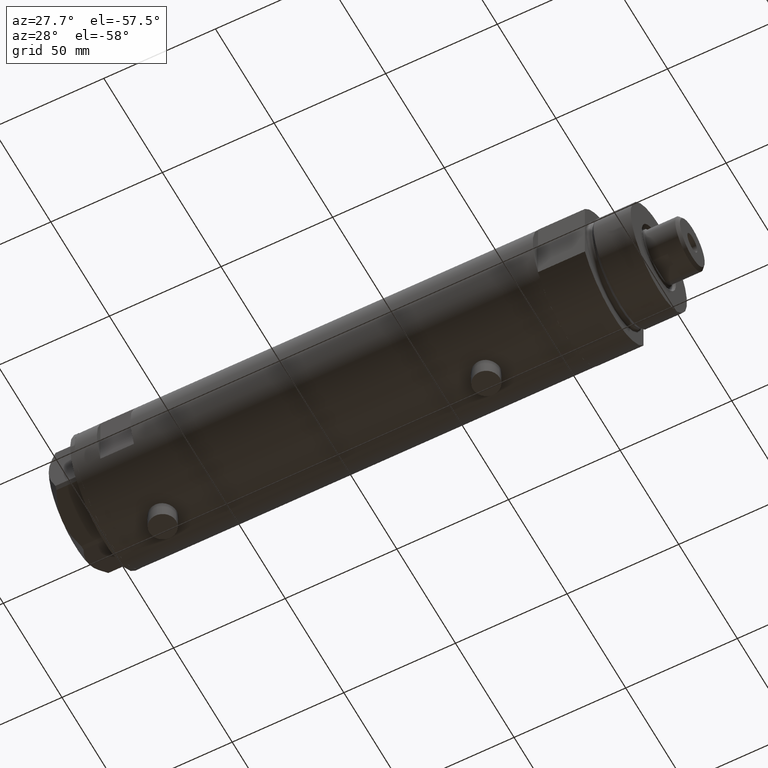
[diagram: clean part render]
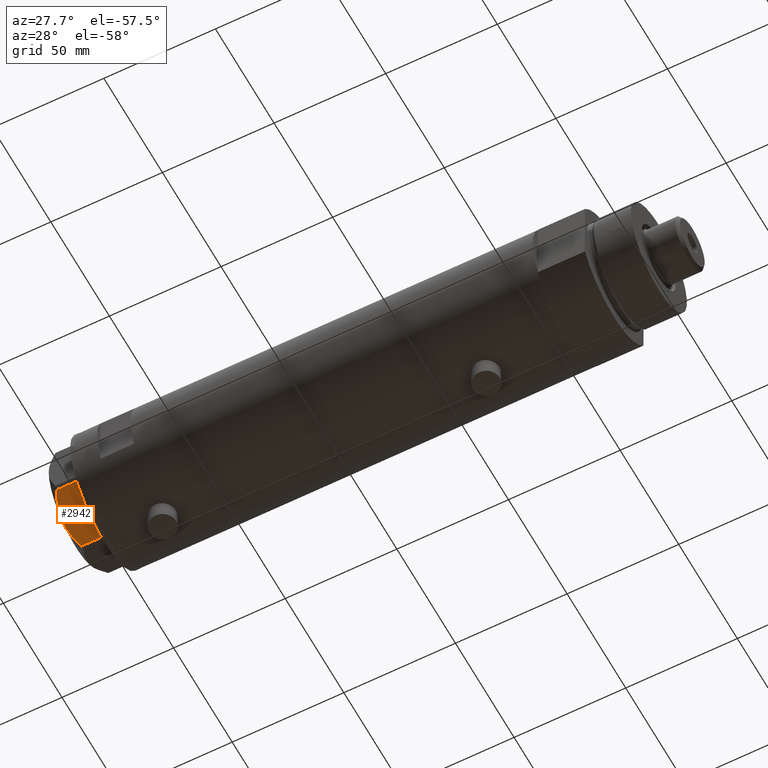
[diagram: same view with one face highlighted and labeled with its STEP entity id]
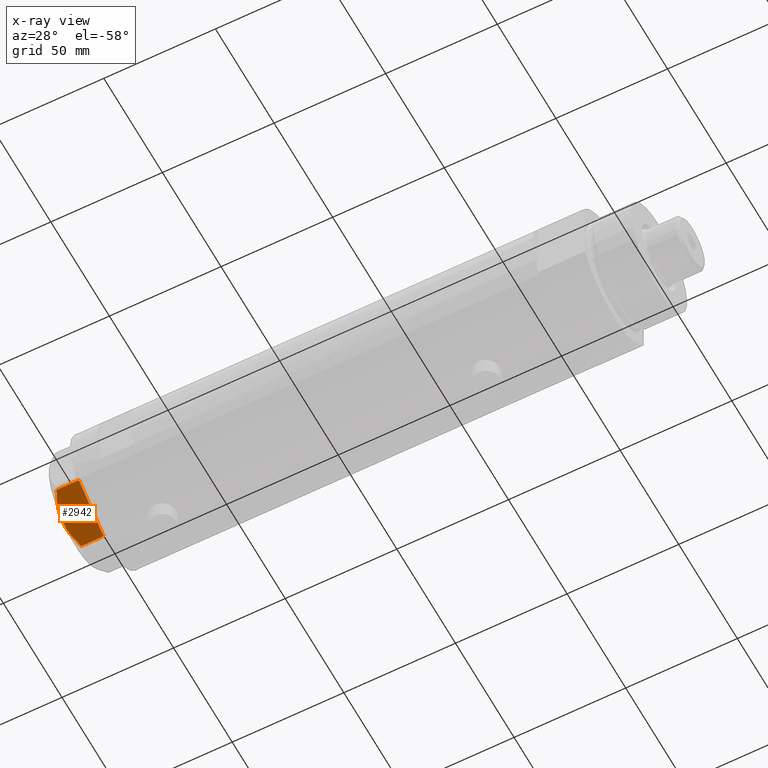
[diagram: x-ray of the same camera — body ghosted, the highlighted face saturated]
A machine part, auxiliary view. The second image highlights one B-rep face of the part: STEP entity #2942.
The next image is the same camera in x-ray: the body ghosted, the highlighted face saturated — about 0% of this face is hidden behind the body in this view.
In plain terms, the highlighted planar face has unit normal (0, 0.5, 0.866).
Its self-contained STEP definition (entity closure, byte-faithful):
#39 = CARTESIAN_POINT ( 'NONE',  ( -10.58093321976963175, 20.44920774001128194, 12.98168640760950510 ) ) ;
#86 = EDGE_CURVE ( 'NONE', #470, #752, #1523, .T. ) ;
#109 = CARTESIAN_POINT ( 'NONE',  ( 0.000000000000000000, 26.55811238272274366, 0.000000000000000000 ) ) ;
#214 = CARTESIAN_POINT ( 'NONE',  ( -21.20080365460317751, 14.31782268570117367, 10.43131750950939818 ) ) ;
#311 = VERTEX_POINT ( 'NONE', #3688 ) ;
#470 = VERTEX_POINT ( 'NONE', #4315 ) ;
#512 = VERTEX_POINT ( 'NONE', #2386 ) ;
#565 = PLANE ( 'NONE',  #1193 ) ;
#594 = CARTESIAN_POINT ( 'NONE',  ( -11.50000000000004441, 19.91858428704211548, 13.00000000000000000 ) ) ;
#699 = EDGE_LOOP ( 'NONE', ( #4259, #3975, #3105, #4416, #3204 ) ) ;
#752 = VERTEX_POINT ( 'NONE', #2878 ) ;
#804 = CARTESIAN_POINT ( 'NONE',  ( -6.946777556903628970, 22.54738849024396075, 12.42689993760377831 ) ) ;
#867 = CARTESIAN_POINT ( 'NONE',  ( -22.03005154776141339, 13.83905619136132792, 0.000000000000000000 ) ) ;
#959 = CARTESIAN_POINT ( 'NONE',  ( -18.64279229058393739, 15.79469123530780372, 11.57055225522972286 ) ) ;
#1193 = AXIS2_PLACEMENT_3D ( 'NONE', #1947, #2807, #4197 ) ;
#1234 = EDGE_CURVE ( 'NONE', #3750, #311, #4388, .T. ) ;
#1283 = CARTESIAN_POINT ( 'NONE',  ( -22.03005154776142049, 13.83905619136132614, 13.00000000000000000 ) ) ;
#1523 = B_SPLINE_CURVE_WITH_KNOTS ( 'NONE', 3,
 ( #3893, #3913, #1830, #804, #1939, #3016, #1580, #39, #4422, #4448 ),
 .UNSPECIFIED., .F., .F.,
 ( 4, 2, 2, 2, 4 ),
 ( 0.001228959670438532553, 0.007497079744270828371, 0.01063113978118697921, 0.01219816979964505159, 0.01376519981810312397 ),
 .UNSPECIFIED. ) ;
#1580 = CARTESIAN_POINT ( 'NONE',  ( -9.656518383329851574, 20.98291889467267879, 12.90784227772844162 ) ) ;
#1592 = DIRECTION ( 'NONE',  ( 0.000000000000000000, 0.000000000000000000, -1.000000000000000000 ) ) ;
#1693 = VECTOR ( 'NONE', #4271, 1000.000000000000227 ) ;
#1830 = CARTESIAN_POINT ( 'NONE',  ( -4.320186229909891651, 24.06385169993495055, 11.62937486882611005 ) ) ;
#1831 = EDGE_CURVE ( 'NONE', #512, #3750, #2502, .T. ) ;
#1885 = LINE ( 'NONE', #3286, #3513 ) ;
#1939 = CARTESIAN_POINT ( 'NONE',  ( -7.836767740116584058, 22.03355241838984924, 12.63731396715694899 ) ) ;
#1947 = CARTESIAN_POINT ( 'NONE',  ( 0.000000000000000000, 26.55811238272274366, 13.00000000000000000 ) ) ;
#2267 = CARTESIAN_POINT ( 'NONE',  ( -13.32175508098984018, 18.86679350063497296, 13.00000000000009237 ) ) ;
#2333 = CARTESIAN_POINT ( 'NONE',  ( -20.35958612119325650, 14.80349985506242838, 10.84420102443839085 ) ) ;
#2386 = CARTESIAN_POINT ( 'NONE',  ( -0.9699484522385893870, 25.99811238272273073, 0.000000000000000000 ) ) ;
#2502 = LINE ( 'NONE', #109, #1693 ) ;
#2655 = DIRECTION ( 'NONE',  ( 0.000000000000000000, 0.000000000000000000, 1.000000000000000000 ) ) ;
#2807 = DIRECTION ( 'NONE',  ( 0.5000000000000008882, -0.8660254037844381525, 0.000000000000000000 ) ) ;
#2878 = CARTESIAN_POINT ( 'NONE',  ( -11.50000000000004441, 19.91858428704211548, 13.00000000000000000 ) ) ;
#2912 = EDGE_CURVE ( 'NONE', #752, #311, #3555, .T. ) ;
#2942 = ADVANCED_FACE ( 'NONE', ( #3887 ), #565, .F. ) ;
#2997 = VECTOR ( 'NONE', #2655, 1000.000000000000000 ) ;
#3005 = EDGE_CURVE ( 'NONE', #470, #512, #1885, .T. ) ;
#3016 = CARTESIAN_POINT ( 'NONE',  ( -9.197898616902921987, 21.24770314027493612, 12.85271263895580596 ) ) ;
#3105 = ORIENTED_EDGE ( 'NONE', *, *, #2912, .F. ) ;
#3204 = ORIENTED_EDGE ( 'NONE', *, *, #3005, .T. ) ;
#3286 = CARTESIAN_POINT ( 'NONE',  ( -0.9699484522385897201, 25.99811238272273073, 13.00000000000000000 ) ) ;
#3319 = CARTESIAN_POINT ( 'NONE',  ( -15.11535457301031649, 17.83125835109857249, 12.70765172847700519 ) ) ;
#3396 = CARTESIAN_POINT ( 'NONE',  ( -19.07486218896993790, 15.54523556316591915, 11.39727285399141898 ) ) ;
#3513 = VECTOR ( 'NONE', #1592, 1000.000000000000000 ) ;
#3555 = B_SPLINE_CURVE_WITH_KNOTS ( 'NONE', 3,
 ( #594, #2267, #3319, #4401, #4331, #959, #3396, #2333, #214, #3723 ),
 .UNSPECIFIED., .F., .F.,
 ( 4, 2, 2, 2, 4 ),
 ( 0.01376519981810312397, 0.01998941321701587850, 0.02154546656674406757, 0.02310151991647225664, 0.02621362661592864171 ),
 .UNSPECIFIED. ) ;
#3688 = CARTESIAN_POINT ( 'NONE',  ( -22.03005154776142760, 13.83905619136132259, 9.983800287807632401 ) ) ;
#3723 = CARTESIAN_POINT ( 'NONE',  ( -22.03005154776142760, 13.83905619136132259, 9.983800287807632401 ) ) ;
#3750 = VERTEX_POINT ( 'NONE', #867 ) ;
#3887 = FACE_OUTER_BOUND ( 'NONE', #699, .T. ) ;
#3893 = CARTESIAN_POINT ( 'NONE',  ( -0.9699484522384476115, 25.99811238272281599, 9.983800287807556018 ) ) ;
#3913 = CARTESIAN_POINT ( 'NONE',  ( -2.626494320835643048, 25.04170517956326236, 10.87778242614345814 ) ) ;
#3975 = ORIENTED_EDGE ( 'NONE', *, *, #1234, .T. ) ;
#4197 = DIRECTION ( 'NONE',  ( 0.8660254037844381525, 0.5000000000000008882, 0.000000000000000000 ) ) ;
#4259 = ORIENTED_EDGE ( 'NONE', *, *, #1831, .T. ) ;
#4271 = DIRECTION ( 'NONE',  ( -0.8660254037844380415, -0.5000000000000008882, 0.000000000000000000 ) ) ;
#4315 = CARTESIAN_POINT ( 'NONE',  ( -0.9699484522384476115, 25.99811238272281599, 9.983800287807556018 ) ) ;
#4331 = CARTESIAN_POINT ( 'NONE',  ( -17.77001848220189828, 16.29858742851882525, 11.89212886775844424 ) ) ;
#4388 = LINE ( 'NONE', #1283, #2997 ) ;
#4401 = CARTESIAN_POINT ( 'NONE',  ( -17.32831362639716843, 16.55360584592005679, 12.04068176582934235 ) ) ;
#4416 = ORIENTED_EDGE ( 'NONE', *, *, #86, .F. ) ;
#4422 = CARTESIAN_POINT ( 'NONE',  ( -11.04134848610939557, 20.18338686205100885, 13.00000000000010125 ) ) ;
#4448 = CARTESIAN_POINT ( 'NONE',  ( -11.50000000000004441, 19.91858428704211548, 13.00000000000000000 ) ) ;